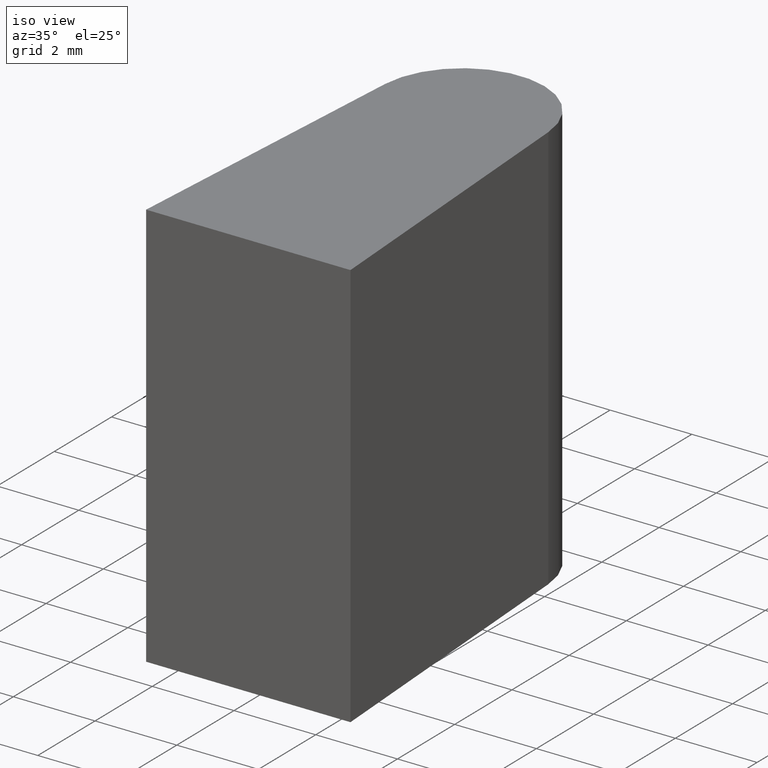
[diagram: clean part render]
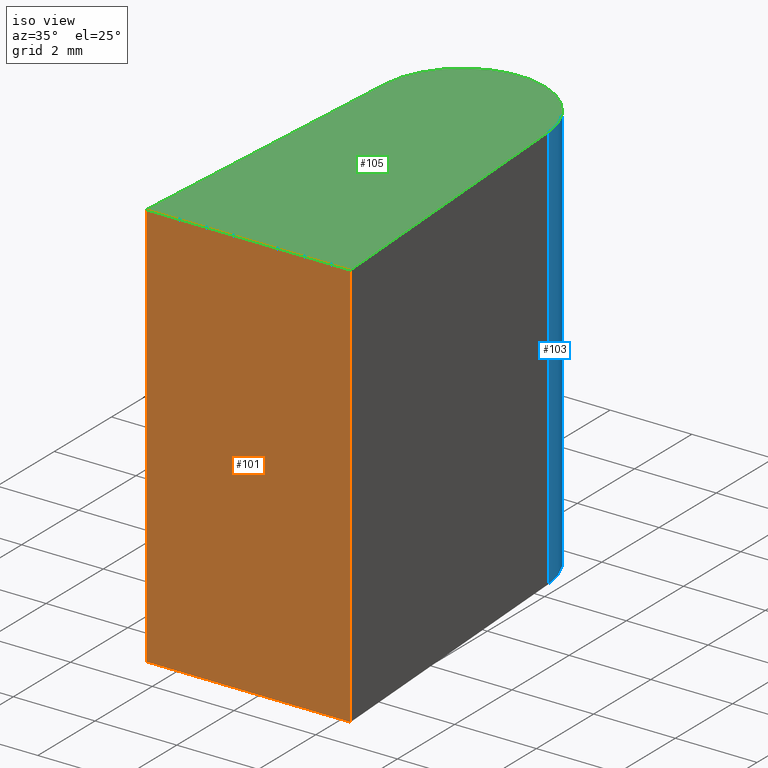
[diagram: same view with three faces highlighted in distinct colors, each labeled with its STEP entity id]
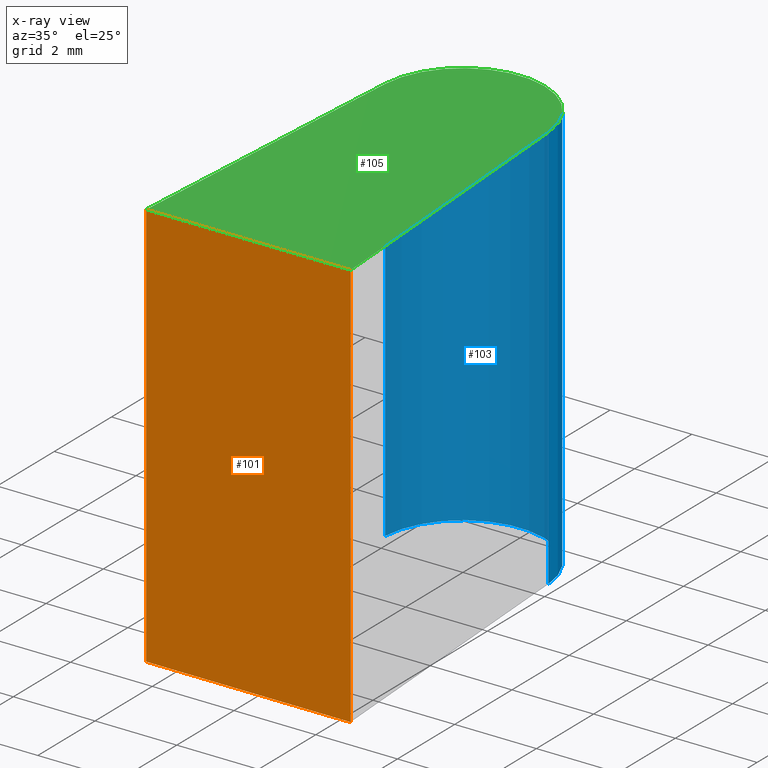
[diagram: x-ray of the same camera — body ghosted, the three highlighted faces saturated]
A machine part, iso view with three faces highlighted in distinct colors.
The next image is the same camera in x-ray (body ghosted, the three faces saturated) — at least one of them is partly hidden behind the body in this view.
Their STEP definitions:

[orange] entity #101 — the highlighted planar face has unit normal (0, -1, 0).
#20=FACE_OUTER_BOUND('',#26,.T.);
#26=EDGE_LOOP('',(#75,#76,#77,#78));
#32=LINE('',#168,#42);
#35=LINE('',#174,#45);
#36=LINE('',#176,#46);
#37=LINE('',#177,#47);
#42=VECTOR('',#139,10.);
#45=VECTOR('',#144,10.);
#46=VECTOR('',#145,10.);
#47=VECTOR('',#146,10.);
#52=VERTEX_POINT('',#165);
#53=VERTEX_POINT('',#167);
#55=VERTEX_POINT('',#173);
#56=VERTEX_POINT('',#175);
#60=EDGE_CURVE('',#53,#52,#32,.T.);
#63=EDGE_CURVE('',#52,#55,#35,.T.);
#64=EDGE_CURVE('',#56,#55,#36,.T.);
#65=EDGE_CURVE('',#56,#53,#37,.T.);
#75=ORIENTED_EDGE('',*,*,#63,.T.);
#76=ORIENTED_EDGE('',*,*,#64,.F.);
#77=ORIENTED_EDGE('',*,*,#65,.T.);
#78=ORIENTED_EDGE('',*,*,#60,.T.);
#96=PLANE('',#127);
#101=ADVANCED_FACE('',(#20),#96,.T.);
#127=AXIS2_PLACEMENT_3D('',#172,#142,#143);
#139=DIRECTION('',(0.,0.,1.));
#142=DIRECTION('center_axis',(0.,-1.,0.));
#143=DIRECTION('ref_axis',(0.,0.,-1.));
#144=DIRECTION('',(-1.,0.,0.));
#145=DIRECTION('',(0.,0.,1.));
#146=DIRECTION('',(1.,0.,0.));
#165=CARTESIAN_POINT('',(2.5,-7.5,5.));
#167=CARTESIAN_POINT('',(2.5,-7.5,-5.));
#168=CARTESIAN_POINT('',(2.5,-7.5,0.));
#172=CARTESIAN_POINT('Origin',(2.5,-7.5,0.));
#173=CARTESIAN_POINT('',(-2.5,-7.5,5.));
#174=CARTESIAN_POINT('',(-2.5,-7.5,5.));
#175=CARTESIAN_POINT('',(-2.5,-7.5,-5.));
#176=CARTESIAN_POINT('',(-2.5,-7.5,0.));
#177=CARTESIAN_POINT('',(-2.5,-7.5,-5.));

[blue] entity #103 — the highlighted cylindrical surface (partial cylindrical patch) has radius 2 mm, axis along (0, 0, 1).
#14=CIRCLE('',#130,2.);
#15=CIRCLE('',#131,2.);
#16=CYLINDRICAL_SURFACE('',#129,2.);
#22=FACE_OUTER_BOUND('',#28,.T.);
#28=EDGE_LOOP('',(#83,#84,#85,#86));
#34=LINE('',#171,#44);
#39=LINE('',#182,#49);
#44=VECTOR('',#141,10.);
#49=VECTOR('',#150,10.);
#51=VERTEX_POINT('',#164);
#54=VERTEX_POINT('',#169);
#57=VERTEX_POINT('',#179);
#58=VERTEX_POINT('',#181);
#62=EDGE_CURVE('',#54,#51,#34,.T.);
#67=EDGE_CURVE('',#58,#57,#39,.T.);
#69=EDGE_CURVE('',#54,#58,#14,.T.);
#70=EDGE_CURVE('',#57,#51,#15,.T.);
#83=ORIENTED_EDGE('',*,*,#62,.F.);
#84=ORIENTED_EDGE('',*,*,#69,.T.);
#85=ORIENTED_EDGE('',*,*,#67,.T.);
#86=ORIENTED_EDGE('',*,*,#70,.T.);
#103=ADVANCED_FACE('',(#22),#16,.T.);
#129=AXIS2_PLACEMENT_3D('',#184,#152,#153);
#130=AXIS2_PLACEMENT_3D('',#185,#154,#155);
#131=AXIS2_PLACEMENT_3D('',#186,#156,#157);
#141=DIRECTION('',(0.,0.,1.));
#150=DIRECTION('',(0.,0.,1.));
#152=DIRECTION('center_axis',(0.,0.,1.));
#153=DIRECTION('ref_axis',(1.,0.,0.));
#154=DIRECTION('center_axis',(0.,0.,1.));
#155=DIRECTION('ref_axis',(1.,0.,0.));
#156=DIRECTION('center_axis',(0.,0.,-1.));
#157=DIRECTION('ref_axis',(1.,0.,0.));
#164=CARTESIAN_POINT('',(1.9956470248934,0.131882341631134,5.));
#169=CARTESIAN_POINT('',(1.9956470248934,0.131882341631134,-5.));
#171=CARTESIAN_POINT('',(1.9956470248934,0.131882341631134,0.));
#179=CARTESIAN_POINT('',(-1.9956470248934,0.131882341631129,5.));
#181=CARTESIAN_POINT('',(-1.9956470248934,0.131882341631129,-5.));
#182=CARTESIAN_POINT('',(-1.9956470248934,0.131882341631134,0.));
#184=CARTESIAN_POINT('Origin',(0.,0.,0.));
#185=CARTESIAN_POINT('Origin',(0.,0.,-5.));
#186=CARTESIAN_POINT('Origin',(0.,0.,5.));

[green] entity #105 — the highlighted planar face has unit normal (0, 0, 1).
#15=CIRCLE('',#131,2.);
#24=FACE_OUTER_BOUND('',#30,.T.);
#30=EDGE_LOOP('',(#91,#92,#93,#94));
#31=LINE('',#166,#41);
#35=LINE('',#174,#45);
#38=LINE('',#180,#48);
#41=VECTOR('',#138,10.);
#45=VECTOR('',#144,10.);
#48=VECTOR('',#149,10.);
#51=VERTEX_POINT('',#164);
#52=VERTEX_POINT('',#165);
#55=VERTEX_POINT('',#173);
#57=VERTEX_POINT('',#179);
#59=EDGE_CURVE('',#51,#52,#31,.T.);
#63=EDGE_CURVE('',#52,#55,#35,.T.);
#66=EDGE_CURVE('',#55,#57,#38,.T.);
#70=EDGE_CURVE('',#57,#51,#15,.T.);
#91=ORIENTED_EDGE('',*,*,#66,.F.);
#92=ORIENTED_EDGE('',*,*,#63,.F.);
#93=ORIENTED_EDGE('',*,*,#59,.F.);
#94=ORIENTED_EDGE('',*,*,#70,.F.);
#99=PLANE('',#133);
#105=ADVANCED_FACE('',(#24),#99,.T.);
#131=AXIS2_PLACEMENT_3D('',#186,#156,#157);
#133=AXIS2_PLACEMENT_3D('',#188,#160,#161);
#138=DIRECTION('',(0.0659411708155671,-0.997823512446701,0.));
#144=DIRECTION('',(-1.,0.,0.));
#149=DIRECTION('',(0.0659411708155671,0.997823512446701,0.));
#156=DIRECTION('center_axis',(0.,0.,-1.));
#157=DIRECTION('ref_axis',(1.,0.,0.));
#160=DIRECTION('center_axis',(0.,0.,1.));
#161=DIRECTION('ref_axis',(1.,0.,0.));
#164=CARTESIAN_POINT('',(1.9956470248934,0.131882341631134,5.));
#165=CARTESIAN_POINT('',(2.5,-7.5,5.));
#166=CARTESIAN_POINT('',(2.5,-7.5,5.));
#173=CARTESIAN_POINT('',(-2.5,-7.5,5.));
#174=CARTESIAN_POINT('',(-2.5,-7.5,5.));
#179=CARTESIAN_POINT('',(-1.9956470248934,0.131882341631129,5.));
#180=CARTESIAN_POINT('',(-1.9956470248934,0.131882341631129,5.));
#186=CARTESIAN_POINT('Origin',(0.,0.,5.));
#188=CARTESIAN_POINT('Origin',(1.73472347597681E-16,0.709081540761135,5.));